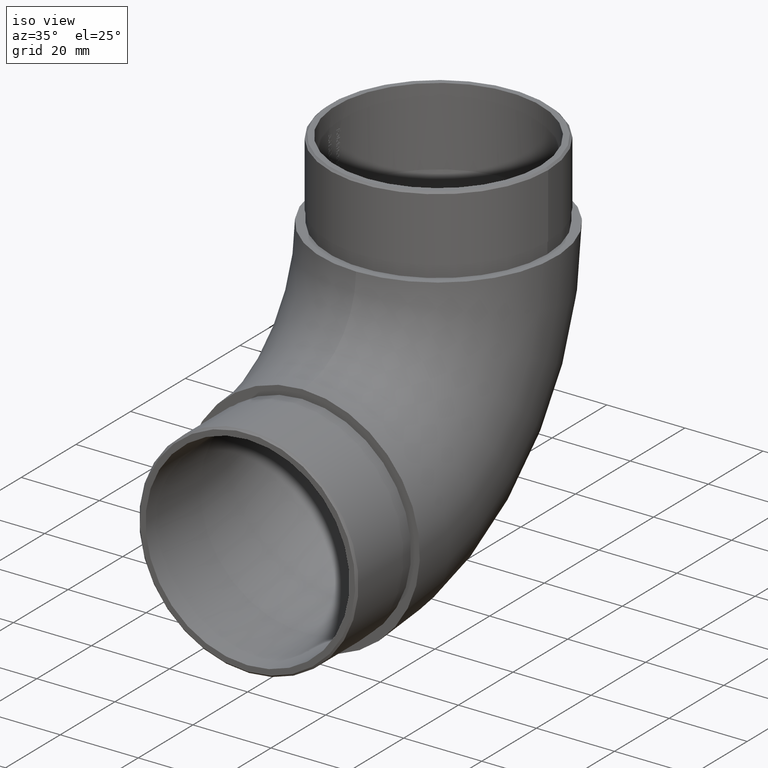
[diagram: clean part render]
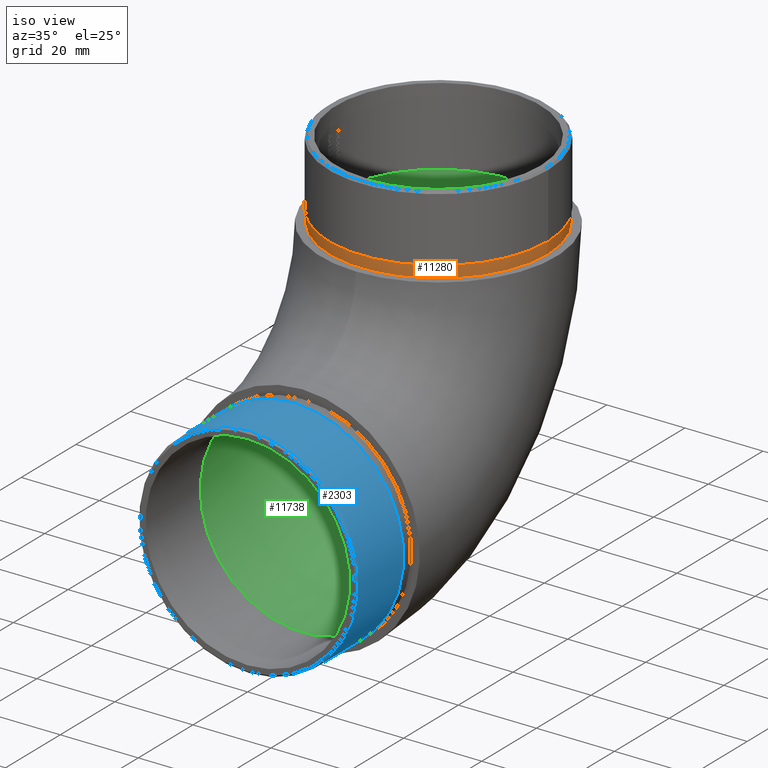
[diagram: same view with three faces highlighted in distinct colors, each labeled with its STEP entity id]
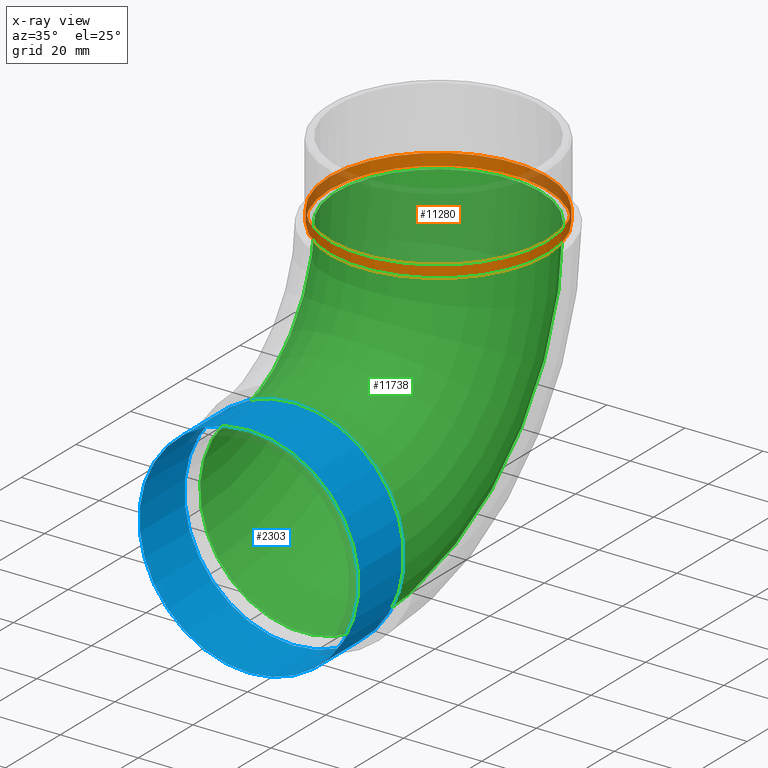
[diagram: x-ray of the same camera — body ghosted, the three highlighted faces saturated]
A machine part, iso view with three faces highlighted in distinct colors.
The next image is the same camera in x-ray (body ghosted, the three faces saturated) — at least one of them is partly hidden behind the body in this view.
Their STEP definitions:

[orange] entity #11280 — the highlighted cylindrical surface (bore or boss wall) has radius 27.9 mm, axis along (-0, -0, -1).
#972 = FACE_OUTER_BOUND ( 'NONE', #6730, .T. ) ;
#1461 = DIRECTION ( 'NONE',  ( 0.0000000000000000000, 0.0000000000000000000, 1.000000000000000000 ) ) ;
#1845 = EDGE_CURVE ( 'NONE', #11500, #11500, #11894, .T. ) ;
#2320 = VERTEX_POINT ( 'NONE', #3635 ) ;
#3426 = CARTESIAN_POINT ( 'NONE',  ( 0.0000000000000000000, 49.84999999999999400, 83.00000000000000000 ) ) ;
#3635 = CARTESIAN_POINT ( 'NONE',  ( 27.90000000000000200, 49.84999999999999400, 80.00000000000000000 ) ) ;
#4142 = ORIENTED_EDGE ( 'NONE', *, *, #1845, .F. ) ;
#4264 = ORIENTED_EDGE ( 'NONE', *, *, #9814, .T. ) ;
#4353 = EDGE_LOOP ( 'NONE', ( #4142 ) ) ;
#5327 = CARTESIAN_POINT ( 'NONE',  ( 27.90000000000000200, 49.84999999999999400, 83.00000000000000000 ) ) ;
#5869 = DIRECTION ( 'NONE',  ( 1.000000000000000000, 0.0000000000000000000, 0.0000000000000000000 ) ) ;
#6009 = AXIS2_PLACEMENT_3D ( 'NONE', #3426, #1461, #8070 ) ;
#6730 = EDGE_LOOP ( 'NONE', ( #4264 ) ) ;
#7227 = AXIS2_PLACEMENT_3D ( 'NONE', #9677, #11538, #5869 ) ;
#7643 = CYLINDRICAL_SURFACE ( 'NONE', #8409, 27.90000000000000200 ) ;
#8070 = DIRECTION ( 'NONE',  ( 1.000000000000000000, 0.0000000000000000000, 0.0000000000000000000 ) ) ;
#8409 = AXIS2_PLACEMENT_3D ( 'NONE', #10618, #9635, #11489 ) ;
#9415 = FACE_OUTER_BOUND ( 'NONE', #4353, .T. ) ;
#9635 = DIRECTION ( 'NONE',  ( -0.0000000000000000000, -0.0000000000000000000, -1.000000000000000000 ) ) ;
#9677 = CARTESIAN_POINT ( 'NONE',  ( 0.0000000000000000000, 49.84999999999999400, 80.00000000000000000 ) ) ;
#9814 = EDGE_CURVE ( 'NONE', #2320, #2320, #10926, .T. ) ;
#10618 = CARTESIAN_POINT ( 'NONE',  ( 0.0000000000000000000, 49.84999999999999400, 83.00000000000000000 ) ) ;
#10926 = CIRCLE ( 'NONE', #7227, 27.90000000000000200 ) ;
#11280 = ADVANCED_FACE ( 'NONE', ( #9415, #972 ), #7643, .T. ) ;
#11489 = DIRECTION ( 'NONE',  ( -1.000000000000000000, 0.0000000000000000000, 0.0000000000000000000 ) ) ;
#11500 = VERTEX_POINT ( 'NONE', #5327 ) ;
#11538 = DIRECTION ( 'NONE',  ( 0.0000000000000000000, 0.0000000000000000000, 1.000000000000000000 ) ) ;
#11894 = CIRCLE ( 'NONE', #6009, 27.90000000000000200 ) ;

[blue] entity #2303 — the highlighted cylindrical surface (bore or boss wall) has radius 28.1 mm, axis along (-0, 1, -0).
#393 = CIRCLE ( 'NONE', #11657, 28.09999999999999800 ) ;
#844 = AXIS2_PLACEMENT_3D ( 'NONE', #9303, #10311, #3810 ) ;
#875 = CARTESIAN_POINT ( 'NONE',  ( 0.0000000000000000000, -3.000000000000000000, 2.050000000000006500 ) ) ;
#1496 = CYLINDRICAL_SURFACE ( 'NONE', #2121, 28.09999999999999400 ) ;
#1570 = CARTESIAN_POINT ( 'NONE',  ( 0.0000000000000000000, -19.50000000000001100, 30.15000000000000200 ) ) ;
#2121 = AXIS2_PLACEMENT_3D ( 'NONE', #9228, #10010, #11291 ) ;
#2303 = ADVANCED_FACE ( 'NONE', ( #9631, #7149 ), #1496, .T. ) ;
#2611 = DIRECTION ( 'NONE',  ( 0.0000000000000000000, 1.000000000000000000, 0.0000000000000000000 ) ) ;
#3476 = ORIENTED_EDGE ( 'NONE', *, *, #7412, .T. ) ;
#3810 = DIRECTION ( 'NONE',  ( 0.0000000000000000000, 0.0000000000000000000, -1.000000000000000000 ) ) ;
#4056 = EDGE_LOOP ( 'NONE', ( #5889 ) ) ;
#5268 = VERTEX_POINT ( 'NONE', #11330 ) ;
#5889 = ORIENTED_EDGE ( 'NONE', *, *, #7176, .T. ) ;
#7149 = FACE_OUTER_BOUND ( 'NONE', #7964, .T. ) ;
#7176 = EDGE_CURVE ( 'NONE', #5268, #5268, #393, .T. ) ;
#7412 = EDGE_CURVE ( 'NONE', #9822, #9822, #9178, .T. ) ;
#7964 = EDGE_LOOP ( 'NONE', ( #3476 ) ) ;
#8210 = DIRECTION ( 'NONE',  ( 0.0000000000000000000, 0.0000000000000000000, -1.000000000000000000 ) ) ;
#9178 = CIRCLE ( 'NONE', #844, 28.09999999999999800 ) ;
#9228 = CARTESIAN_POINT ( 'NONE',  ( 0.0000000000000000000, -20.00000000000000000, 30.15000000000000200 ) ) ;
#9303 = CARTESIAN_POINT ( 'NONE',  ( 0.0000000000000000000, -3.000000000000000000, 30.15000000000000200 ) ) ;
#9631 = FACE_OUTER_BOUND ( 'NONE', #4056, .T. ) ;
#9822 = VERTEX_POINT ( 'NONE', #875 ) ;
#10010 = DIRECTION ( 'NONE',  ( -0.0000000000000000000, 1.000000000000000000, -0.0000000000000000000 ) ) ;
#10311 = DIRECTION ( 'NONE',  ( 0.0000000000000000000, -1.000000000000000000, 0.0000000000000000000 ) ) ;
#11291 = DIRECTION ( 'NONE',  ( 0.0000000000000000000, 0.0000000000000000000, 1.000000000000000000 ) ) ;
#11330 = CARTESIAN_POINT ( 'NONE',  ( 0.0000000000000000000, -19.50000000000001100, 2.050000000000006500 ) ) ;
#11657 = AXIS2_PLACEMENT_3D ( 'NONE', #1570, #2611, #8210 ) ;

[green] entity #11738 — the highlighted toroidal blend (fillet) surface has major radius 49.85 mm and minor (blend) radius 26.15 mm.
#68 = VERTEX_POINT ( 'NONE', #2675 ) ;
#179 = CIRCLE ( 'NONE', #7111, 26.14999999999999900 ) ;
#431 = DIRECTION ( 'NONE',  ( 0.0000000000000000000, 0.0000000000000000000, 1.000000000000000000 ) ) ;
#497 = EDGE_CURVE ( 'NONE', #11644, #11644, #179, .T. ) ;
#558 = DIRECTION ( 'NONE',  ( 0.0000000000000000000, 6.123233995736766000E-017, 1.000000000000000000 ) ) ;
#1251 = TOROIDAL_SURFACE ( 'NONE', #2650, 49.85000000000000100, 26.14999999999999900 ) ;
#1257 = DIRECTION ( 'NONE',  ( -1.000000000000000000, -0.0000000000000000000, -0.0000000000000000000 ) ) ;
#1543 = ORIENTED_EDGE ( 'NONE', *, *, #497, .T. ) ;
#2261 = ORIENTED_EDGE ( 'NONE', *, *, #2791, .F. ) ;
#2371 = CARTESIAN_POINT ( 'NONE',  ( 0.0000000000000000000, -6.938893903907228400E-015, 30.15000000000000200 ) ) ;
#2650 = AXIS2_PLACEMENT_3D ( 'NONE', #6139, #1257, #431 ) ;
#2675 = CARTESIAN_POINT ( 'NONE',  ( 0.0000000000000000000, -6.938893903907228400E-015, 56.30000000000000400 ) ) ;
#2791 = EDGE_CURVE ( 'NONE', #68, #68, #11145, .T. ) ;
#3483 = DIRECTION ( 'NONE',  ( 0.0000000000000000000, -1.000000000000000000, 0.0000000000000000000 ) ) ;
#5281 = FACE_OUTER_BOUND ( 'NONE', #9586, .T. ) ;
#6139 = CARTESIAN_POINT ( 'NONE',  ( 0.0000000000000000000, -6.938893903907228400E-015, 80.00000000000000000 ) ) ;
#6811 = EDGE_LOOP ( 'NONE', ( #1543 ) ) ;
#7111 = AXIS2_PLACEMENT_3D ( 'NONE', #8050, #558, #3483 ) ;
#7201 = DIRECTION ( 'NONE',  ( 0.0000000000000000000, 1.000000000000000000, 0.0000000000000000000 ) ) ;
#8050 = CARTESIAN_POINT ( 'NONE',  ( 0.0000000000000000000, 49.84999999999999400, 80.00000000000000000 ) ) ;
#8194 = AXIS2_PLACEMENT_3D ( 'NONE', #2371, #7201, #9075 ) ;
#9075 = DIRECTION ( 'NONE',  ( 0.0000000000000000000, 0.0000000000000000000, 1.000000000000000000 ) ) ;
#9586 = EDGE_LOOP ( 'NONE', ( #2261 ) ) ;
#10146 = CARTESIAN_POINT ( 'NONE',  ( 0.0000000000000000000, 23.69999999999999200, 80.00000000000000000 ) ) ;
#11145 = CIRCLE ( 'NONE', #8194, 26.14999999999999900 ) ;
#11354 = FACE_OUTER_BOUND ( 'NONE', #6811, .T. ) ;
#11644 = VERTEX_POINT ( 'NONE', #10146 ) ;
#11738 = ADVANCED_FACE ( 'NONE', ( #11354, #5281 ), #1251, .F. ) ;